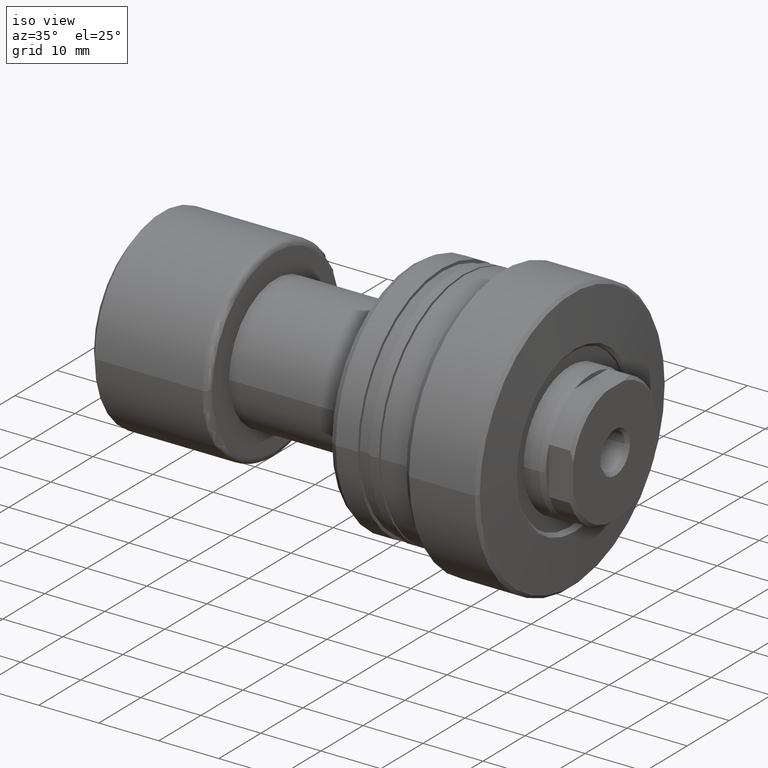
[diagram: clean part render]
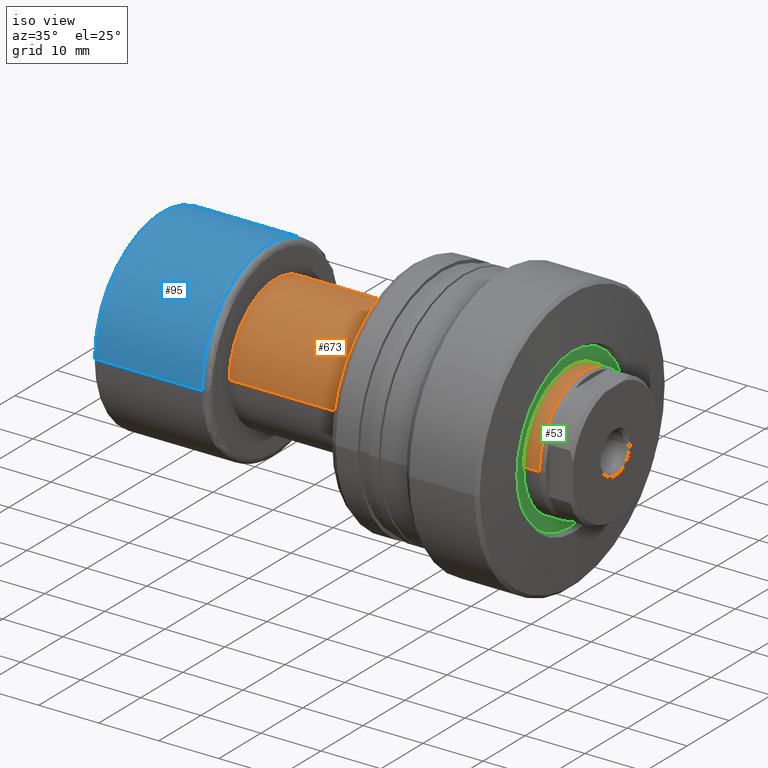
[diagram: same view with three faces highlighted in distinct colors, each labeled with its STEP entity id]
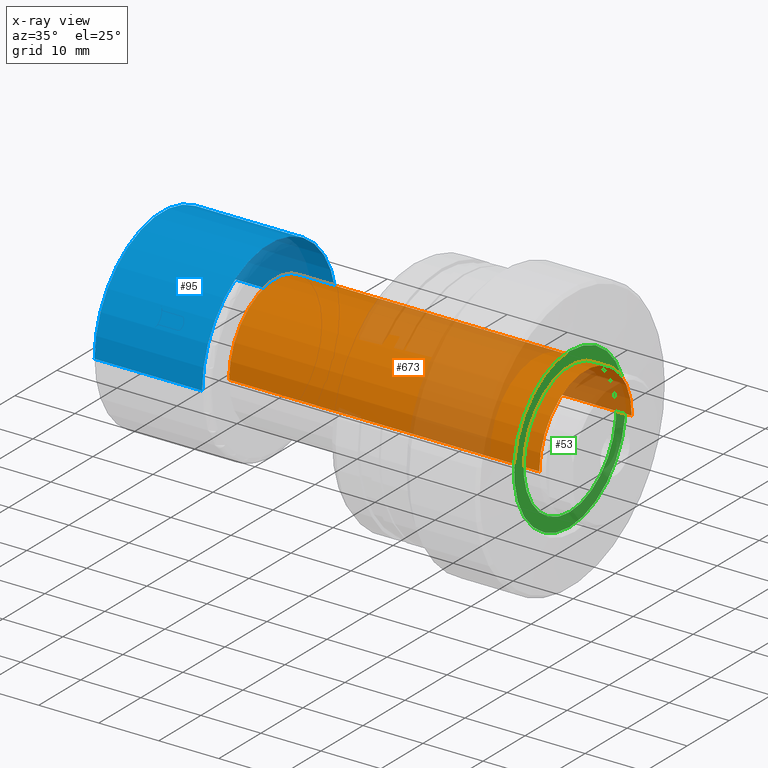
[diagram: x-ray of the same camera — body ghosted, the three highlighted faces saturated]
A machine part, iso view with three faces highlighted in distinct colors.
The next image is the same camera in x-ray (body ghosted, the three faces saturated) — at least one of them is partly hidden behind the body in this view.
Their STEP definitions:

[orange] entity #673 — the highlighted cylindrical surface (partial cylindrical patch) has radius 11 mm, axis along (-1, -0, -0).
#19 = ORIENTED_EDGE ( 'NONE', *, *, #1370, .T. ) ;
#44 = CARTESIAN_POINT ( 'NONE',  ( 72.06675751232378957, 11.00000000000018829, 1.347111479062111676E-15 ) ) ;
#149 = VECTOR ( 'NONE', #1212, 1000.000000000000000 ) ;
#245 = VERTEX_POINT ( 'NONE', #44 ) ;
#297 = CARTESIAN_POINT ( 'NONE',  ( 20.39999999999999858, -11.00000000000000000, 0.000000000000000000 ) ) ;
#328 = DIRECTION ( 'NONE',  ( -1.000000000000000000, -1.069542322069065801E-17, -0.000000000000000000 ) ) ;
#444 = ORIENTED_EDGE ( 'NONE', *, *, #1376, .T. ) ;
#453 = DIRECTION ( 'NONE',  ( 0.000000000000000000, -1.000000000000000000, 0.000000000000000000 ) ) ;
#458 = ORIENTED_EDGE ( 'NONE', *, *, #1295, .F. ) ;
#459 = ORIENTED_EDGE ( 'NONE', *, *, #2174, .F. ) ;
#473 = VECTOR ( 'NONE', #1211, 1000.000000000000000 ) ;
#518 = FACE_OUTER_BOUND ( 'NONE', #989, .T. ) ;
#656 = CARTESIAN_POINT ( 'NONE',  ( -1.176496554275982442E-16, 11.00000000000009237, 1.347111479062100040E-15 ) ) ;
#673 = ADVANCED_FACE ( 'NONE', ( #518 ), #1683, .T. ) ;
#929 = CARTESIAN_POINT ( 'NONE',  ( 20.39999999999999858, 2.181866337020894116E-16, 0.000000000000000000 ) ) ;
#950 = CARTESIAN_POINT ( 'NONE',  ( 72.06675751232378957, 7.707844717371907893E-16, 0.000000000000000000 ) ) ;
#957 = VERTEX_POINT ( 'NONE', #297 ) ;
#973 = CARTESIAN_POINT ( 'NONE',  ( 72.06675751232378957, -11.00000000000018829, 0.000000000000000000 ) ) ;
#989 = EDGE_LOOP ( 'NONE', ( #444, #19, #458, #459 ) ) ;
#1151 = LINE ( 'NONE', #656, #149 ) ;
#1211 = DIRECTION ( 'NONE',  ( -1.000000000000000000, -1.069542322069065801E-17, -0.000000000000000000 ) ) ;
#1212 = DIRECTION ( 'NONE',  ( -1.000000000000000000, -1.069542322069065801E-17, -0.000000000000000000 ) ) ;
#1247 = CIRCLE ( 'NONE', #2163, 11.00000000000018829 ) ;
#1295 = EDGE_CURVE ( 'NONE', #957, #2302, #1647, .T. ) ;
#1370 = EDGE_CURVE ( 'NONE', #245, #2302, #1151, .T. ) ;
#1376 = EDGE_CURVE ( 'NONE', #1902, #245, #1247, .T. ) ;
#1458 = CARTESIAN_POINT ( 'NONE',  ( 20.39999999999999858, 11.00000000000000000, 1.347111479062094124E-15 ) ) ;
#1476 = DIRECTION ( 'NONE',  ( 0.000000000000000000, -1.000000000000000000, 0.000000000000000000 ) ) ;
#1488 = DIRECTION ( 'NONE',  ( 1.069542322069065955E-17, -1.000000000000000000, 0.000000000000000000 ) ) ;
#1509 = DIRECTION ( 'NONE',  ( -1.000000000000000000, -1.069542322069065801E-17, -0.000000000000000000 ) ) ;
#1563 = LINE ( 'NONE', #2129, #473 ) ;
#1647 = CIRCLE ( 'NONE', #2282, 11.00000000000000000 ) ;
#1677 = AXIS2_PLACEMENT_3D ( 'NONE', #2436, #328, #1488 ) ;
#1683 = CYLINDRICAL_SURFACE ( 'NONE', #1677, 11.00000000000009237 ) ;
#1689 = DIRECTION ( 'NONE',  ( -1.000000000000000000, -1.069542322069065801E-17, -0.000000000000000000 ) ) ;
#1902 = VERTEX_POINT ( 'NONE', #973 ) ;
#2129 = CARTESIAN_POINT ( 'NONE',  ( 1.176496554275982442E-16, -11.00000000000009237, 0.000000000000000000 ) ) ;
#2163 = AXIS2_PLACEMENT_3D ( 'NONE', #950, #1509, #453 ) ;
#2174 = EDGE_CURVE ( 'NONE', #1902, #957, #1563, .T. ) ;
#2282 = AXIS2_PLACEMENT_3D ( 'NONE', #929, #1689, #1476 ) ;
#2302 = VERTEX_POINT ( 'NONE', #1458 ) ;
#2436 = CARTESIAN_POINT ( 'NONE',  ( 0.000000000000000000, 0.000000000000000000, 0.000000000000000000 ) ) ;

[blue] entity #95 — the highlighted cylindrical surface (partial cylindrical patch) has radius 16 mm, axis along (-1, -0, -0).
#95 = ADVANCED_FACE ( 'NONE', ( #2258 ), #749, .T. ) ;
#106 = DIRECTION ( 'NONE',  ( -1.000000000000000000, -1.069542322069065801E-17, -0.000000000000000000 ) ) ;
#203 = CARTESIAN_POINT ( 'NONE',  ( 1.500000000000001776, 16.00000000000000000, 0.000000000000000000 ) ) ;
#398 = LINE ( 'NONE', #1714, #1490 ) ;
#471 = CIRCLE ( 'NONE', #2039, 16.00000000000000000 ) ;
#495 = CARTESIAN_POINT ( 'NONE',  ( 1.500000000000002220, -16.00000000000000000, 1.959434878635765526E-15 ) ) ;
#571 = AXIS2_PLACEMENT_3D ( 'NONE', #1849, #2068, #1858 ) ;
#576 = CIRCLE ( 'NONE', #736, 16.00000000000000000 ) ;
#736 = AXIS2_PLACEMENT_3D ( 'NONE', #2230, #1857, #1314 ) ;
#749 = CYLINDRICAL_SURFACE ( 'NONE', #571, 16.00000000000000000 ) ;
#919 = VERTEX_POINT ( 'NONE', #495 ) ;
#936 = DIRECTION ( 'NONE',  ( -1.000000000000000000, -1.069542322069065801E-17, -0.000000000000000000 ) ) ;
#982 = ORIENTED_EDGE ( 'NONE', *, *, #1667, .F. ) ;
#1035 = CARTESIAN_POINT ( 'NONE',  ( 19.40000000000000213, 2.074912104813987675E-16, 0.000000000000000000 ) ) ;
#1091 = VECTOR ( 'NONE', #2052, 1000.000000000000000 ) ;
#1218 = EDGE_CURVE ( 'NONE', #919, #2115, #576, .T. ) ;
#1314 = DIRECTION ( 'NONE',  ( 1.355252715606880543E-17, -1.000000000000000000, 0.000000000000000000 ) ) ;
#1469 = DIRECTION ( 'NONE',  ( 0.000000000000000000, -1.000000000000000000, 0.000000000000000000 ) ) ;
#1490 = VECTOR ( 'NONE', #936, 1000.000000000000000 ) ;
#1512 = ORIENTED_EDGE ( 'NONE', *, *, #1582, .T. ) ;
#1582 = EDGE_CURVE ( 'NONE', #1971, #1779, #471, .T. ) ;
#1637 = ORIENTED_EDGE ( 'NONE', *, *, #1218, .F. ) ;
#1667 = EDGE_CURVE ( 'NONE', #1971, #919, #398, .T. ) ;
#1680 = CARTESIAN_POINT ( 'NONE',  ( 19.40000000000000213, 16.00000000000000000, 1.959434878635765131E-15 ) ) ;
#1693 = CARTESIAN_POINT ( 'NONE',  ( -1.711267715310505281E-16, 16.00000000000000000, 1.959434878635765131E-15 ) ) ;
#1714 = CARTESIAN_POINT ( 'NONE',  ( 1.711267715310505281E-16, -16.00000000000000000, 0.000000000000000000 ) ) ;
#1731 = EDGE_CURVE ( 'NONE', #1779, #2115, #1854, .T. ) ;
#1748 = EDGE_LOOP ( 'NONE', ( #1512, #2320, #1637, #982 ) ) ;
#1779 = VERTEX_POINT ( 'NONE', #1680 ) ;
#1814 = CARTESIAN_POINT ( 'NONE',  ( 19.40000000000000213, -16.00000000000000000, 0.000000000000000000 ) ) ;
#1849 = CARTESIAN_POINT ( 'NONE',  ( 0.000000000000000000, 0.000000000000000000, 0.000000000000000000 ) ) ;
#1854 = LINE ( 'NONE', #1693, #1091 ) ;
#1857 = DIRECTION ( 'NONE',  ( -1.000000000000000000, -1.069542322069065801E-17, -0.000000000000000000 ) ) ;
#1858 = DIRECTION ( 'NONE',  ( 1.069542322069065801E-17, -1.000000000000000000, 0.000000000000000000 ) ) ;
#1971 = VERTEX_POINT ( 'NONE', #1814 ) ;
#2039 = AXIS2_PLACEMENT_3D ( 'NONE', #1035, #106, #1469 ) ;
#2052 = DIRECTION ( 'NONE',  ( -1.000000000000000000, -1.069542322069065801E-17, -0.000000000000000000 ) ) ;
#2068 = DIRECTION ( 'NONE',  ( -1.000000000000000000, -1.069542322069065801E-17, -0.000000000000000000 ) ) ;
#2115 = VERTEX_POINT ( 'NONE', #203 ) ;
#2230 = CARTESIAN_POINT ( 'NONE',  ( 1.500000000000001998, 1.604313483103600935E-17, 0.000000000000000000 ) ) ;
#2258 = FACE_OUTER_BOUND ( 'NONE', #1748, .T. ) ;
#2320 = ORIENTED_EDGE ( 'NONE', *, *, #1731, .T. ) ;

[green] entity #53 — the highlighted planar face has unit normal (1, 0, 0).
#16 = DIRECTION ( 'NONE',  ( 0.000000000000000000, 0.000000000000000000, -1.000000000000000000 ) ) ;
#39 = DIRECTION ( 'NONE',  ( 0.000000000000000000, 0.000000000000000000, -1.000000000000000000 ) ) ;
#53 = ADVANCED_FACE ( 'NONE', ( #1666, #367 ), #1095, .T. ) ;
#70 = EDGE_CURVE ( 'NONE', #1033, #1785, #143, .T. ) ;
#143 = CIRCLE ( 'NONE', #414, 13.25000000000000178 ) ;
#167 = CARTESIAN_POINT ( 'NONE',  ( -1.500000000000000000, 0.000000000000000000, -13.25000000000000178 ) ) ;
#258 = ORIENTED_EDGE ( 'NONE', *, *, #1832, .F. ) ;
#341 = EDGE_CURVE ( 'NONE', #1984, #946, #1868, .T. ) ;
#367 = FACE_OUTER_BOUND ( 'NONE', #1262, .T. ) ;
#414 = AXIS2_PLACEMENT_3D ( 'NONE', #2442, #2266, #1315 ) ;
#461 = AXIS2_PLACEMENT_3D ( 'NONE', #990, #1743, #806 ) ;
#806 = DIRECTION ( 'NONE',  ( 0.000000000000000000, 0.000000000000000000, -1.000000000000000000 ) ) ;
#813 = DIRECTION ( 'NONE',  ( 0.000000000000000000, 0.000000000000000000, -1.000000000000000000 ) ) ;
#847 = CARTESIAN_POINT ( 'NONE',  ( -1.500000000000000000, 0.000000000000000000, -11.00000000000000000 ) ) ;
#913 = CARTESIAN_POINT ( 'NONE',  ( -1.500000000000000000, 0.000000000000000000, 0.000000000000000000 ) ) ;
#946 = VERTEX_POINT ( 'NONE', #1043 ) ;
#974 = AXIS2_PLACEMENT_3D ( 'NONE', #2139, #1926, #813 ) ;
#990 = CARTESIAN_POINT ( 'NONE',  ( -1.500000000000000000, 0.000000000000000000, 0.000000000000000000 ) ) ;
#1033 = VERTEX_POINT ( 'NONE', #2408 ) ;
#1043 = CARTESIAN_POINT ( 'NONE',  ( -1.500000000000000000, 1.347111479062088405E-15, 11.00000000000000000 ) ) ;
#1095 = PLANE ( 'NONE',  #1199 ) ;
#1142 = CARTESIAN_POINT ( 'NONE',  ( -1.500000000000000000, 0.000000000000000000, 0.000000000000000000 ) ) ;
#1199 = AXIS2_PLACEMENT_3D ( 'NONE', #1142, #1510, #16 ) ;
#1262 = EDGE_LOOP ( 'NONE', ( #1572, #1373 ) ) ;
#1315 = DIRECTION ( 'NONE',  ( 0.000000000000000000, 0.000000000000000000, -1.000000000000000000 ) ) ;
#1373 = ORIENTED_EDGE ( 'NONE', *, *, #70, .T. ) ;
#1404 = ORIENTED_EDGE ( 'NONE', *, *, #341, .F. ) ;
#1510 = DIRECTION ( 'NONE',  ( 1.000000000000000000, 0.000000000000000000, 0.000000000000000000 ) ) ;
#1572 = ORIENTED_EDGE ( 'NONE', *, *, #1787, .T. ) ;
#1650 = AXIS2_PLACEMENT_3D ( 'NONE', #913, #1670, #39 ) ;
#1666 = FACE_BOUND ( 'NONE', #1711, .T. ) ;
#1670 = DIRECTION ( 'NONE',  ( 1.000000000000000000, 0.000000000000000000, 0.000000000000000000 ) ) ;
#1711 = EDGE_LOOP ( 'NONE', ( #1404, #258 ) ) ;
#1743 = DIRECTION ( 'NONE',  ( 1.000000000000000000, 0.000000000000000000, 0.000000000000000000 ) ) ;
#1785 = VERTEX_POINT ( 'NONE', #167 ) ;
#1787 = EDGE_CURVE ( 'NONE', #1785, #1033, #2164, .T. ) ;
#1802 = CIRCLE ( 'NONE', #974, 11.00000000000000000 ) ;
#1832 = EDGE_CURVE ( 'NONE', #946, #1984, #1802, .T. ) ;
#1868 = CIRCLE ( 'NONE', #461, 11.00000000000000000 ) ;
#1926 = DIRECTION ( 'NONE',  ( 1.000000000000000000, 0.000000000000000000, 0.000000000000000000 ) ) ;
#1984 = VERTEX_POINT ( 'NONE', #847 ) ;
#2139 = CARTESIAN_POINT ( 'NONE',  ( -1.500000000000000000, 0.000000000000000000, 0.000000000000000000 ) ) ;
#2164 = CIRCLE ( 'NONE', #1650, 13.25000000000000178 ) ;
#2266 = DIRECTION ( 'NONE',  ( 1.000000000000000000, 0.000000000000000000, 0.000000000000000000 ) ) ;
#2408 = CARTESIAN_POINT ( 'NONE',  ( -1.500000000000000000, 1.622657008870243277E-15, 13.25000000000000178 ) ) ;
#2442 = CARTESIAN_POINT ( 'NONE',  ( -1.500000000000000000, 0.000000000000000000, 0.000000000000000000 ) ) ;